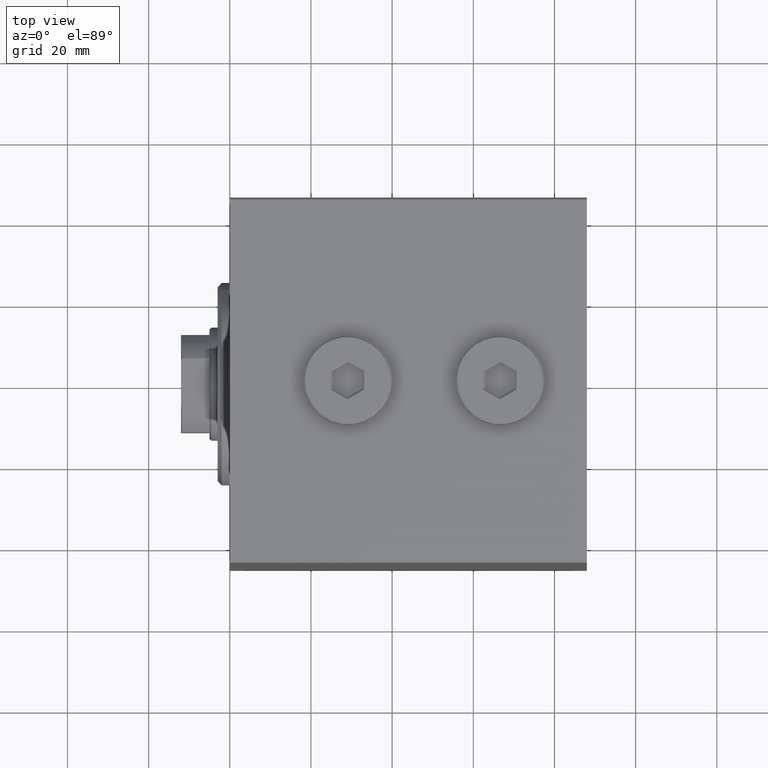
[diagram: clean part render]
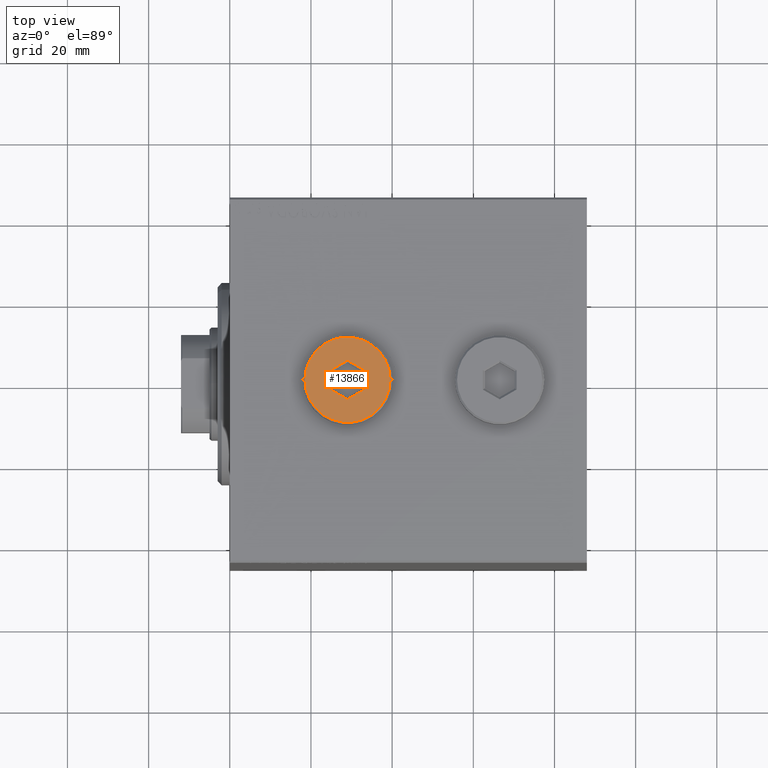
[diagram: same view with one face highlighted and labeled with its STEP entity id]
A machine part, top view. The second image highlights one B-rep face of the part: STEP entity #13866.
In plain terms, the highlighted planar face has unit normal (0, 0, 1).
Its self-contained STEP definition (entity closure, byte-faithful):
#174 = VECTOR ( 'NONE', #40272, 1000.000000000000000 ) ;
#856 = AXIS2_PLACEMENT_3D ( 'NONE', #4479, #28421, #31855 ) ;
#1922 = CARTESIAN_POINT ( 'NONE',  ( 0.000000000000000000, 0.000000000000000000, 5.000000000000000000 ) ) ;
#2370 = CARTESIAN_POINT ( 'NONE',  ( 4.166666666666664298, -2.405626121623439584, 5.000000000000000000 ) ) ;
#2478 = LINE ( 'NONE', #23002, #35597 ) ;
#2872 = EDGE_LOOP ( 'NONE', ( #38247, #31957 ) ) ;
#2874 = LINE ( 'NONE', #9255, #13363 ) ;
#3807 = EDGE_CURVE ( 'NONE', #35388, #33503, #32901, .T. ) ;
#4479 = CARTESIAN_POINT ( 'NONE',  ( 0.000000000000000000, 0.000000000000000000, 5.000000000000000000 ) ) ;
#5104 = DIRECTION ( 'NONE',  ( 1.000000000000000000, 0.000000000000000000, 0.000000000000000000 ) ) ;
#6115 = CIRCLE ( 'NONE', #43294, 10.50000000000000178 ) ;
#7228 = DIRECTION ( 'NONE',  ( 1.000000000000000000, 0.000000000000000000, -0.000000000000000000 ) ) ;
#9243 = CARTESIAN_POINT ( 'NONE',  ( -3.916666666666664742, -2.549963688920843907, 5.000000000000000000 ) ) ;
#9255 = CARTESIAN_POINT ( 'NONE',  ( -4.166666666666664298, 2.116950987028627829, 5.000000000000000000 ) ) ;
#9313 = EDGE_CURVE ( 'NONE', #28754, #37727, #23092, .T. ) ;
#10195 = FACE_BOUND ( 'NONE', #16434, .T. ) ;
#10246 = CARTESIAN_POINT ( 'NONE',  ( -4.166666666666664298, 2.405626121623439584, 5.000000000000000000 ) ) ;
#10517 = EDGE_CURVE ( 'NONE', #33503, #35388, #6115, .T. ) ;
#10935 = ORIENTED_EDGE ( 'NONE', *, *, #16399, .T. ) ;
#11083 = FACE_OUTER_BOUND ( 'NONE', #2872, .T. ) ;
#12695 = VECTOR ( 'NONE', #33446, 1000.000000000000000 ) ;
#13363 = VECTOR ( 'NONE', #34345, 1000.000000000000000 ) ;
#13866 = ADVANCED_FACE ( 'NONE', ( #10195, #11083 ), #17259, .T. ) ;
#14664 = CARTESIAN_POINT ( 'NONE',  ( 10.50000000000000178, 1.316495309083404815E-15, 5.000000000000000000 ) ) ;
#14908 = EDGE_CURVE ( 'NONE', #17491, #35665, #2874, .T. ) ;
#16399 = EDGE_CURVE ( 'NONE', #37727, #38519, #39625, .T. ) ;
#16434 = EDGE_LOOP ( 'NONE', ( #29634, #26271, #22710, #10935, #26896, #29241 ) ) ;
#16521 = LINE ( 'NONE', #9243, #174 ) ;
#17259 = PLANE ( 'NONE',  #20788 ) ;
#17491 = VERTEX_POINT ( 'NONE', #18125 ) ;
#18125 = CARTESIAN_POINT ( 'NONE',  ( -4.166666666666665186, -2.405626121623437363, 5.000000000000000000 ) ) ;
#20788 = AXIS2_PLACEMENT_3D ( 'NONE', #31190, #24110, #7228 ) ;
#21086 = DIRECTION ( 'NONE',  ( 0.8660254037844388186, 0.4999999999999997780, 0.000000000000000000 ) ) ;
#22282 = CARTESIAN_POINT ( 'NONE',  ( 4.166666666666664298, -2.116950987028627384, 5.000000000000000000 ) ) ;
#22441 = DIRECTION ( 'NONE',  ( 0.000000000000000000, 0.000000000000000000, 1.000000000000000000 ) ) ;
#22710 = ORIENTED_EDGE ( 'NONE', *, *, #9313, .T. ) ;
#22790 = EDGE_CURVE ( 'NONE', #38519, #24205, #2478, .T. ) ;
#23002 = CARTESIAN_POINT ( 'NONE',  ( 0.2499999999999981681, -4.666914675949471736, 5.000000000000000000 ) ) ;
#23092 = LINE ( 'NONE', #30154, #33064 ) ;
#24110 = DIRECTION ( 'NONE',  ( 0.000000000000000000, 0.000000000000000000, 1.000000000000000000 ) ) ;
#24205 = VERTEX_POINT ( 'NONE', #44477 ) ;
#24726 = CARTESIAN_POINT ( 'NONE',  ( -0.2499999999999992506, 4.666914675949470848, 5.000000000000000000 ) ) ;
#26271 = ORIENTED_EDGE ( 'NONE', *, *, #36571, .T. ) ;
#26896 = ORIENTED_EDGE ( 'NONE', *, *, #22790, .T. ) ;
#28421 = DIRECTION ( 'NONE',  ( 0.000000000000000000, 0.000000000000000000, 1.000000000000000000 ) ) ;
#28606 = LINE ( 'NONE', #24726, #43237 ) ;
#28754 = VERTEX_POINT ( 'NONE', #44312 ) ;
#29241 = ORIENTED_EDGE ( 'NONE', *, *, #33267, .T. ) ;
#29634 = ORIENTED_EDGE ( 'NONE', *, *, #14908, .T. ) ;
#30154 = CARTESIAN_POINT ( 'NONE',  ( 3.916666666666664742, 2.549963688920845239, 5.000000000000000000 ) ) ;
#31190 = CARTESIAN_POINT ( 'NONE',  ( 0.000000000000000000, 0.000000000000000000, 5.000000000000000000 ) ) ;
#31855 = DIRECTION ( 'NONE',  ( 1.000000000000000000, 0.000000000000000000, 0.000000000000000000 ) ) ;
#31957 = ORIENTED_EDGE ( 'NONE', *, *, #10517, .T. ) ;
#32456 = CARTESIAN_POINT ( 'NONE',  ( 4.166666666666663410, 2.405626121623439584, 5.000000000000000000 ) ) ;
#32901 = CIRCLE ( 'NONE', #856, 10.50000000000000178 ) ;
#33064 = VECTOR ( 'NONE', #37025, 1000.000000000000000 ) ;
#33267 = EDGE_CURVE ( 'NONE', #24205, #17491, #16521, .T. ) ;
#33446 = DIRECTION ( 'NONE',  ( 1.024305408229881337E-16, -1.000000000000000000, 0.000000000000000000 ) ) ;
#33503 = VERTEX_POINT ( 'NONE', #14664 ) ;
#34345 = DIRECTION ( 'NONE',  ( 1.024305408229881337E-16, 1.000000000000000000, 0.000000000000000000 ) ) ;
#35388 = VERTEX_POINT ( 'NONE', #38157 ) ;
#35597 = VECTOR ( 'NONE', #44441, 1000.000000000000000 ) ;
#35665 = VERTEX_POINT ( 'NONE', #10246 ) ;
#36571 = EDGE_CURVE ( 'NONE', #35665, #28754, #28606, .T. ) ;
#37025 = DIRECTION ( 'NONE',  ( 0.8660254037844387076, -0.4999999999999998335, 0.000000000000000000 ) ) ;
#37727 = VERTEX_POINT ( 'NONE', #32456 ) ;
#38157 = CARTESIAN_POINT ( 'NONE',  ( -10.50000000000000178, 0.000000000000000000, 5.000000000000000000 ) ) ;
#38247 = ORIENTED_EDGE ( 'NONE', *, *, #3807, .T. ) ;
#38519 = VERTEX_POINT ( 'NONE', #2370 ) ;
#39625 = LINE ( 'NONE', #22282, #12695 ) ;
#40272 = DIRECTION ( 'NONE',  ( -0.8660254037844384856, 0.5000000000000002220, 0.000000000000000000 ) ) ;
#43237 = VECTOR ( 'NONE', #21086, 1000.000000000000114 ) ;
#43294 = AXIS2_PLACEMENT_3D ( 'NONE', #1922, #22441, #5104 ) ;
#44312 = CARTESIAN_POINT ( 'NONE',  ( -6.281144585932674641E-17, 4.811252243246876503, 5.000000000000000000 ) ) ;
#44441 = DIRECTION ( 'NONE',  ( -0.8660254037844387076, -0.4999999999999998335, 0.000000000000000000 ) ) ;
#44477 = CARTESIAN_POINT ( 'NONE',  ( -8.363929151985410416E-16, -4.811252243246877391, 5.000000000000000000 ) ) ;